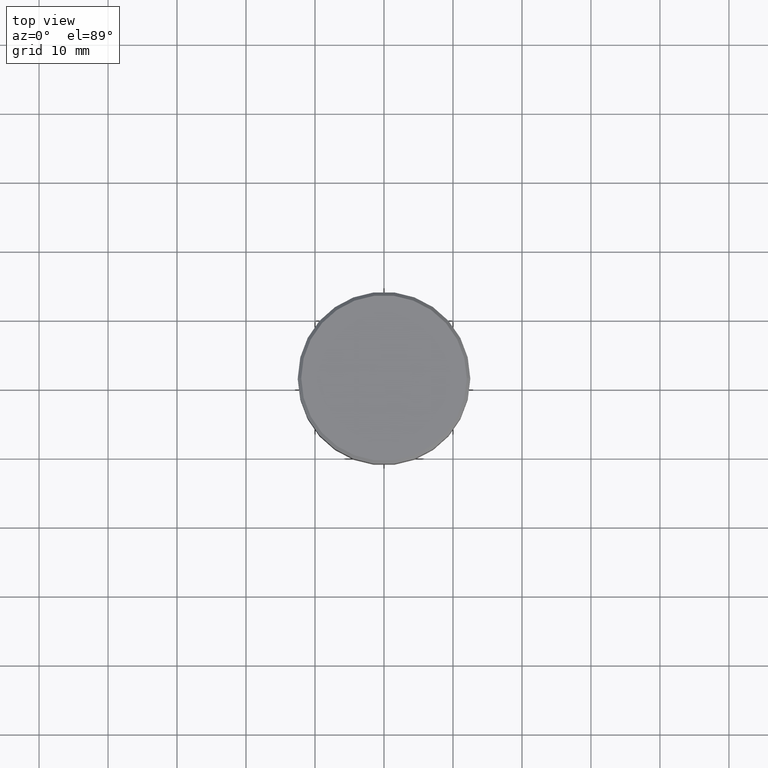
[diagram: clean part render]
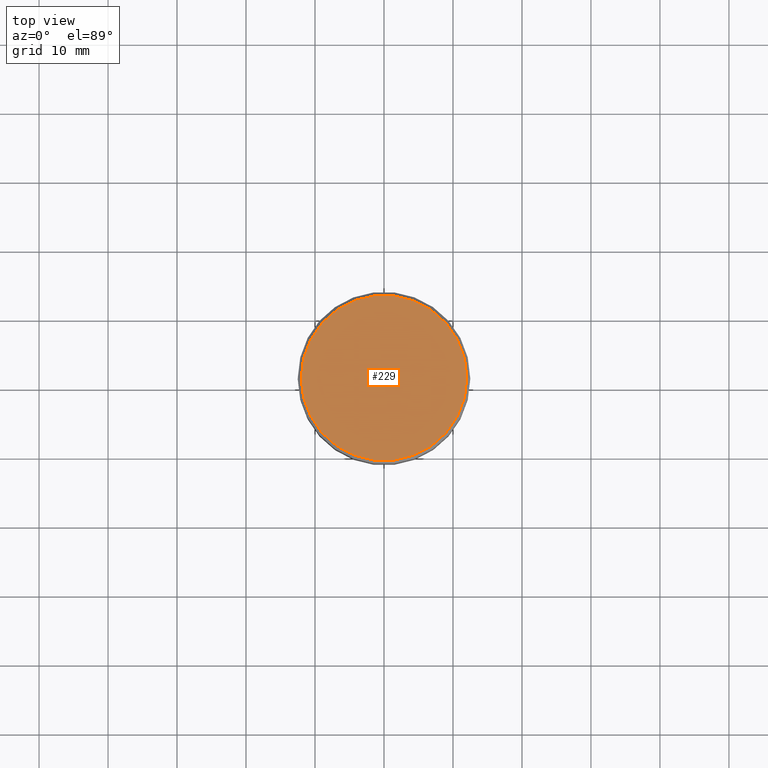
[diagram: same view with one face highlighted and labeled with its STEP entity id]
A machine part, top view. The second image highlights one B-rep face of the part: STEP entity #229.
In plain terms, the highlighted planar face has unit normal (0, -0, 1).
Its self-contained STEP definition (entity closure, byte-faithful):
#20 = CARTESIAN_POINT ( 'NONE',  ( 0.000000000000000000, 0.000000000000000000, 0.000000000000000000 ) ) ;
#31 = PLANE ( 'NONE',  #496 ) ;
#32 = VERTEX_POINT ( 'NONE', #251 ) ;
#55 = VERTEX_POINT ( 'NONE', #346 ) ;
#61 = CIRCLE ( 'NONE', #106, 12.00000000000000355 ) ;
#89 = EDGE_CURVE ( 'NONE', #55, #32, #61, .T. ) ;
#106 = AXIS2_PLACEMENT_3D ( 'NONE', #267, #573, #308 ) ;
#116 = EDGE_CURVE ( 'NONE', #32, #55, #436, .T. ) ;
#134 = ORIENTED_EDGE ( 'NONE', *, *, #116, .T. ) ;
#206 = AXIS2_PLACEMENT_3D ( 'NONE', #20, #527, #268 ) ;
#229 = ADVANCED_FACE ( 'NONE', ( #357 ), #31, .T. ) ;
#237 = DIRECTION ( 'NONE',  ( 1.000000000000000000, 0.000000000000000000, 0.000000000000000000 ) ) ;
#251 = CARTESIAN_POINT ( 'NONE',  ( -12.00000000000000355, 0.000000000000000000, 0.000000000000000000 ) ) ;
#267 = CARTESIAN_POINT ( 'NONE',  ( 0.000000000000000000, 0.000000000000000000, 0.000000000000000000 ) ) ;
#268 = DIRECTION ( 'NONE',  ( 1.000000000000000000, 0.000000000000000000, 0.000000000000000000 ) ) ;
#280 = DIRECTION ( 'NONE',  ( 0.000000000000000000, -0.000000000000000000, 1.000000000000000000 ) ) ;
#289 = EDGE_LOOP ( 'NONE', ( #134, #532 ) ) ;
#308 = DIRECTION ( 'NONE',  ( 1.000000000000000000, 0.000000000000000000, 0.000000000000000000 ) ) ;
#346 = CARTESIAN_POINT ( 'NONE',  ( 12.00000000000000355, 1.500192328955507734E-15, 0.000000000000000000 ) ) ;
#357 = FACE_OUTER_BOUND ( 'NONE', #289, .T. ) ;
#403 = CARTESIAN_POINT ( 'NONE',  ( 0.000000000000000000, 0.000000000000000000, 0.000000000000000000 ) ) ;
#436 = CIRCLE ( 'NONE', #206, 12.00000000000000355 ) ;
#496 = AXIS2_PLACEMENT_3D ( 'NONE', #403, #280, #237 ) ;
#527 = DIRECTION ( 'NONE',  ( -0.000000000000000000, -0.000000000000000000, 1.000000000000000000 ) ) ;
#532 = ORIENTED_EDGE ( 'NONE', *, *, #89, .T. ) ;
#573 = DIRECTION ( 'NONE',  ( -0.000000000000000000, -0.000000000000000000, 1.000000000000000000 ) ) ;